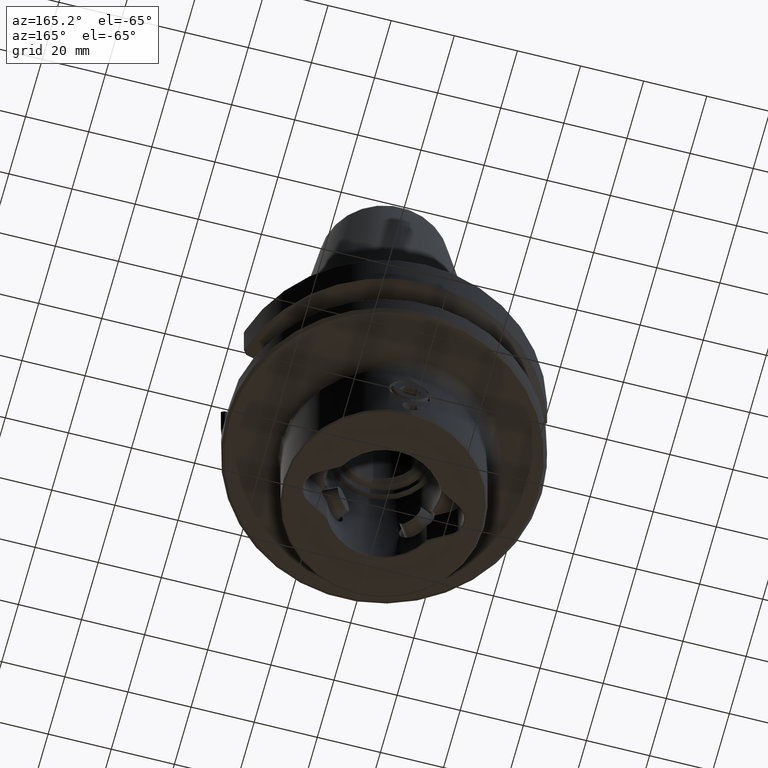
[diagram: clean part render]
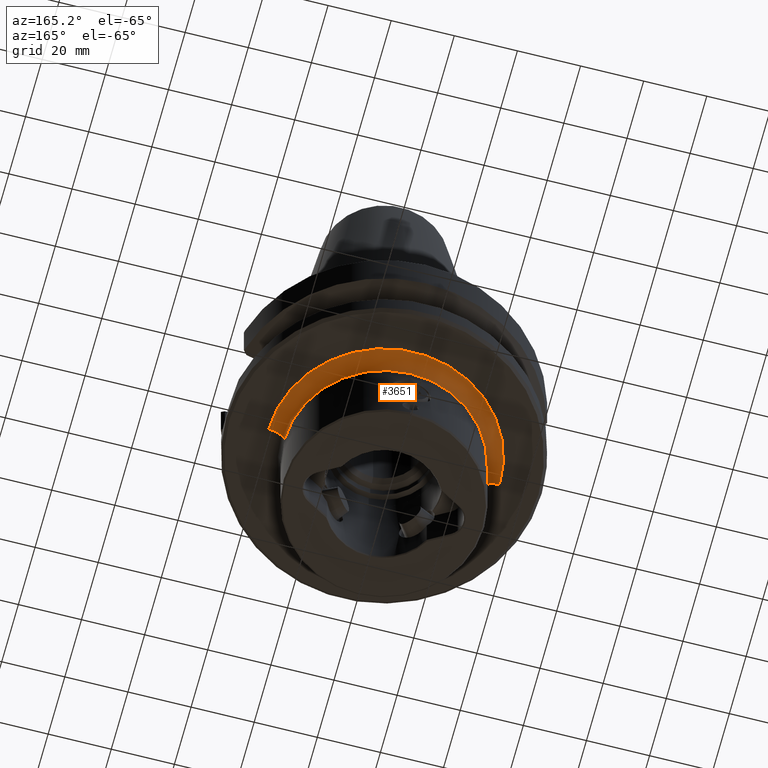
[diagram: same view with one face highlighted and labeled with its STEP entity id]
A machine part, auxiliary view. The second image highlights one B-rep face of the part: STEP entity #3651.
In plain terms, the highlighted toroidal blend (fillet) surface has major radius 36.6 mm and minor (blend) radius 5 mm.
Its self-contained STEP definition (entity closure, byte-faithful):
#1401=VERTEX_POINT('NONE',#3876);
#1565=EDGE_CURVE('NONE',#3171,#1999,#4053,.T.);
#1999=VERTEX_POINT('NONE',#4538);
#2181=VERTEX_POINT('NONE',#4742);
#2503=EDGE_CURVE('NONE',#2181,#1401,#5101,.F.);
#3101=EDGE_CURVE('NONE',#3171,#2181,#5770,.T.);
#3171=VERTEX_POINT('NONE',#5850);
#3437=EDGE_CURVE('NONE',#1999,#1401,#6136,.T.);
#3651=ADVANCED_FACE('NONE',(#6374),#6375,.F.);
#3876=CARTESIAN_POINT('',(-31.6,-5.3707038816242E-015,-43.0));
#4053=CIRCLE('',#6989,36.6);
#4538=CARTESIAN_POINT('',(-36.6,-4.74620343027255E-015,-38.0));
#4742=CARTESIAN_POINT('',(31.6,-9.54674946671667E-015,-43.0));
#5101=CIRCLE('',#9092,31.6);
#5770=CIRCLE('',#10163,5.0);
#5850=CARTESIAN_POINT('',(36.6,-9.22841071515186E-015,-38.0));
#6136=CIRCLE('',#10956,5.0);
#6374=FACE_OUTER_BOUND('',#11363,.T.);
#6375=TOROIDAL_SURFACE('',#11364,36.6,5.0);
#6989=AXIS2_PLACEMENT_3D('',#11820,#11821,#11822);
#9092=AXIS2_PLACEMENT_3D('',#13135,#13136,#13137);
#10163=AXIS2_PLACEMENT_3D('',#13951,#13952,#13953);
#10956=AXIS2_PLACEMENT_3D('',#14302,#14303,#14304);
#11363=EDGE_LOOP('',(#14586,#14587,#14588,#14589));
#11364=AXIS2_PLACEMENT_3D('',#14590,#14591,#14592);
#11820=CARTESIAN_POINT('',(5.27355936696949E-016,-4.74620343027254E-015,-38.0));
#11821=DIRECTION('',(-1.38777878078145E-017,1.2490009027033E-016,1.0));
#11822=DIRECTION('',(0.0,1.0,-1.2490009027033E-016));
#13135=CARTESIAN_POINT('',(5.96744875736021E-016,-5.37070388162419E-015,-43.0));
#13136=DIRECTION('',(1.38777878078145E-017,-1.2490009027033E-016,-1.0));
#13137=DIRECTION('',(-1.0,-1.54074395550979E-032,-1.38777878078145E-017));
#13951=CARTESIAN_POINT('',(36.6,-9.85291116650351E-015,-43.0));
#13952=DIRECTION('',(-1.22464679914735E-016,-1.0,1.2490009027033E-016));
#13953=DIRECTION('',(-1.0,1.22464679914735E-016,-1.38777878078145E-017));
#14302=CARTESIAN_POINT('',(-36.6,-5.3707038816242E-015,-43.0));
#14303=DIRECTION('',(-1.36741026051494E-032,1.0,-1.2490009027033E-016));
#14304=DIRECTION('',(1.0,1.54074395550979E-032,1.38777878078144E-017));
#14586=ORIENTED_EDGE('',*,*,#1565,.F.);
#14587=ORIENTED_EDGE('',*,*,#3101,.T.);
#14588=ORIENTED_EDGE('',*,*,#2503,.T.);
#14589=ORIENTED_EDGE('',*,*,#3437,.F.);
#14590=CARTESIAN_POINT('',(5.96744875736021E-016,-5.37070388162419E-015,-43.0));
#14591=DIRECTION('',(-1.38777878078145E-017,1.2490009027033E-016,1.0));
#14592=DIRECTION('',(-1.0,-1.54074395550979E-032,-1.38777878078145E-017));